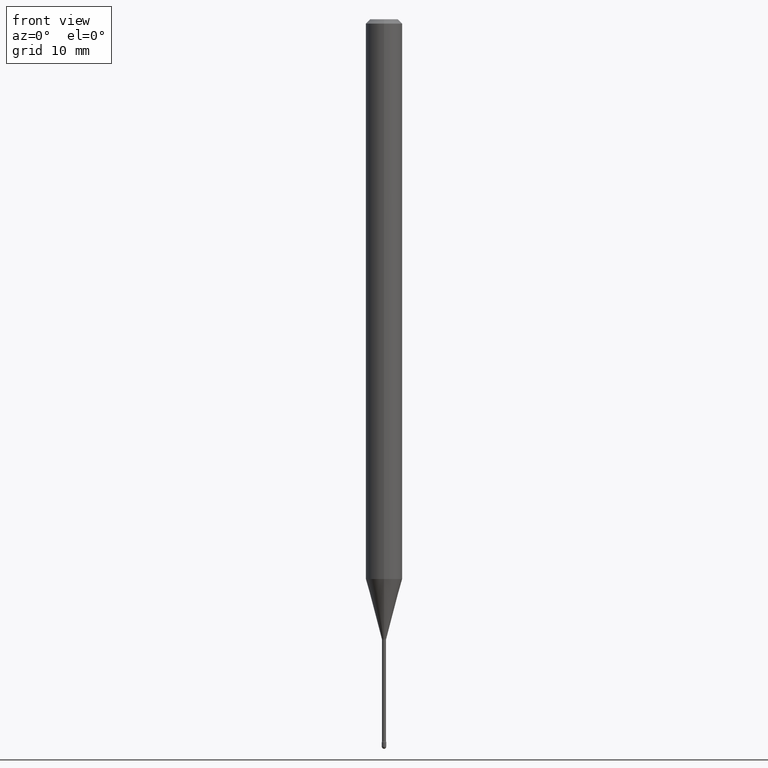
[diagram: clean part render]
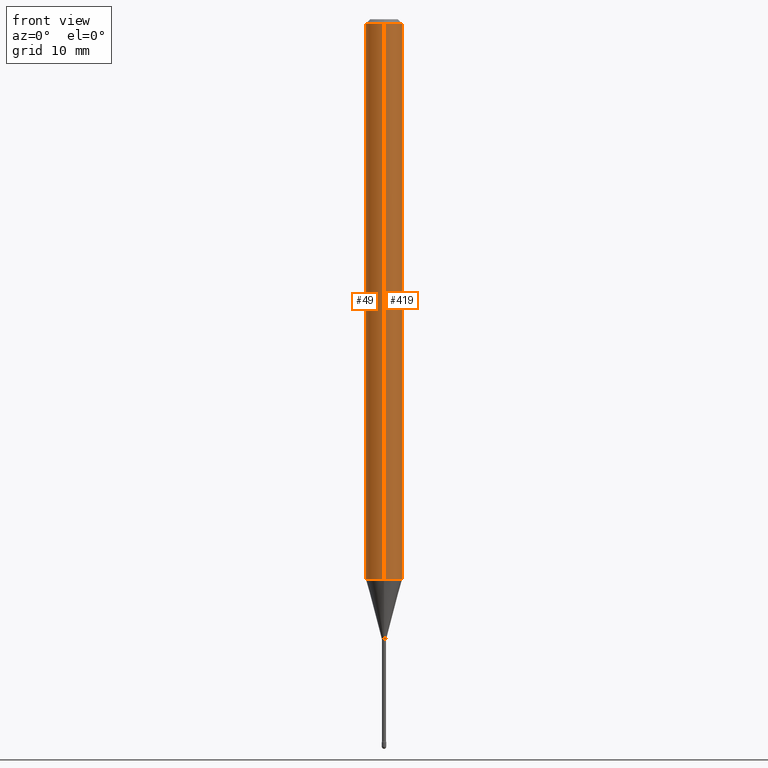
[diagram: same view with one multi-face feature highlighted, each face labeled with its STEP entity id]
A machine part, front view. The highlighted faces form ONE feature: a constant-radius fillet chain: 2 tangent blend faces with common blend radius 1.5875 mm. The faces share edges in the B-rep.
Their STEP definitions:
[1] entity #49 (Cylinder):
#6 = DIRECTION ( 'NONE',  ( -2.445435438683695197E-29, 3.491529123004369972E-15, 1.000000000000000000 ) ) ;
#25 = DIRECTION ( 'NONE',  ( -2.445435438683695197E-29, 3.491529123004369972E-15, 1.000000000000000000 ) ) ;
#26 = VERTEX_POINT ( 'NONE', #444 ) ;
#49 = ADVANCED_FACE ( 'NONE', ( #309 ), #258, .T. ) ;
#50 = CARTESIAN_POINT ( 'NONE',  ( -4.364351673553912750E-16, -0.06250000000000005551, -0.01499999999999986587 ) ) ;
#71 = EDGE_CURVE ( 'NONE', #26, #110, #418, .T. ) ;
#94 = EDGE_CURVE ( 'NONE', #166, #110, #321, .T. ) ;
#105 = ORIENTED_EDGE ( 'NONE', *, *, #94, .F. ) ;
#110 = VERTEX_POINT ( 'NONE', #50 ) ;
#112 = VERTEX_POINT ( 'NONE', #445 ) ;
#114 = CIRCLE ( 'NONE', #227, 0.06250000000000000000 ) ;
#135 = CARTESIAN_POINT ( 'NONE',  ( -1.169113584055446105E-44, 1.669184350826100908E-30, 4.780733988912460139E-16 ) ) ;
#137 = CARTESIAN_POINT ( 'NONE',  ( 4.440892098501097506E-16, 0.06249999999999995143, -0.01500000000000030129 ) ) ;
#148 = EDGE_LOOP ( 'NONE', ( #275, #186, #449, #105 ) ) ;
#166 = VERTEX_POINT ( 'NONE', #137 ) ;
#186 = ORIENTED_EDGE ( 'NONE', *, *, #235, .T. ) ;
#222 = DIRECTION ( 'NONE',  ( -2.445435438683695197E-29, 3.491529123004369972E-15, 1.000000000000000000 ) ) ;
#227 = AXIS2_PLACEMENT_3D ( 'NONE', #236, #244, #286 ) ;
#231 = AXIS2_PLACEMENT_3D ( 'NONE', #135, #222, #397 ) ;
#235 = EDGE_CURVE ( 'NONE', #112, #26, #114, .T. ) ;
#236 = CARTESIAN_POINT ( 'NONE',  ( 4.690486475307307994E-29, -6.696954607973137123E-15, -1.918057782720306248 ) ) ;
#244 = DIRECTION ( 'NONE',  ( -2.445435438683695197E-29, 3.491529123004369972E-15, 1.000000000000000000 ) ) ;
#252 = VECTOR ( 'NONE', #377, 39.37007874015748143 ) ;
#258 = CYLINDRICAL_SURFACE ( 'NONE', #231, 0.06250000000000000000 ) ;
#265 = EDGE_CURVE ( 'NONE', #112, #166, #413, .T. ) ;
#275 = ORIENTED_EDGE ( 'NONE', *, *, #265, .F. ) ;
#286 = DIRECTION ( 'NONE',  ( -6.982962677686265922E-15, -1.000000000000000000, 4.370956789862821150E-15 ) ) ;
#309 = FACE_OUTER_BOUND ( 'NONE', #148, .T. ) ;
#321 = CIRCLE ( 'NONE', #542, 0.06250000000000000000 ) ;
#362 = CARTESIAN_POINT ( 'NONE',  ( 3.668153158025562537E-31, -5.237293684506583702E-17, -0.01500000000000008271 ) ) ;
#377 = DIRECTION ( 'NONE',  ( -2.445435438683695197E-29, 3.491529123004369972E-15, 1.000000000000000000 ) ) ;
#397 = DIRECTION ( 'NONE',  ( -6.982962677686265922E-15, -1.000000000000000000, 3.491529123004369183E-15 ) ) ;
#413 = LINE ( 'NONE', #421, #252 ) ;
#418 = LINE ( 'NONE', #485, #442 ) ;
#421 = CARTESIAN_POINT ( 'NONE',  ( 4.440892098500625669E-16, 0.06250000000000000000, 2.598528287034729400E-16 ) ) ;
#442 = VECTOR ( 'NONE', #6, 39.37007874015748143 ) ;
#444 = CARTESIAN_POINT ( 'NONE',  ( -4.364351673553448308E-16, -0.06250000000000670297, -1.918057782720306026 ) ) ;
#445 = CARTESIAN_POINT ( 'NONE',  ( 4.440892098501093562E-16, 0.06249999999999330397, -1.918057782720306470 ) ) ;
#449 = ORIENTED_EDGE ( 'NONE', *, *, #71, .T. ) ;
#481 = DIRECTION ( 'NONE',  ( -6.982962677686265922E-15, -1.000000000000000000, 3.483106191921935554E-15 ) ) ;
#485 = CARTESIAN_POINT ( 'NONE',  ( -4.364351673553916201E-16, -0.06250000000000000000, 6.962939690790190879E-16 ) ) ;
#542 = AXIS2_PLACEMENT_3D ( 'NONE', #362, #25, #481 ) ;
[2] entity #419 (Cylinder):
#6 = DIRECTION ( 'NONE',  ( -2.445435438683695197E-29, 3.491529123004369972E-15, 1.000000000000000000 ) ) ;
#24 = DIRECTION ( 'NONE',  ( -2.445435438683695197E-29, 3.491529123004369972E-15, 1.000000000000000000 ) ) ;
#26 = VERTEX_POINT ( 'NONE', #444 ) ;
#39 = CARTESIAN_POINT ( 'NONE',  ( 3.668153158025562537E-31, -5.237293684506583702E-17, -0.01500000000000008271 ) ) ;
#50 = CARTESIAN_POINT ( 'NONE',  ( -4.364351673553912750E-16, -0.06250000000000005551, -0.01499999999999986587 ) ) ;
#71 = EDGE_CURVE ( 'NONE', #26, #110, #418, .T. ) ;
#80 = EDGE_CURVE ( 'NONE', #110, #166, #287, .T. ) ;
#110 = VERTEX_POINT ( 'NONE', #50 ) ;
#112 = VERTEX_POINT ( 'NONE', #445 ) ;
#113 = CARTESIAN_POINT ( 'NONE',  ( -1.169113584055446105E-44, 1.669184350826100908E-30, 4.780733988912460139E-16 ) ) ;
#137 = CARTESIAN_POINT ( 'NONE',  ( 4.440892098501097506E-16, 0.06249999999999995143, -0.01500000000000030129 ) ) ;
#143 = AXIS2_PLACEMENT_3D ( 'NONE', #251, #420, #523 ) ;
#166 = VERTEX_POINT ( 'NONE', #137 ) ;
#190 = DIRECTION ( 'NONE',  ( -6.982962677686265922E-15, -1.000000000000000000, 3.491529123004369183E-15 ) ) ;
#192 = CYLINDRICAL_SURFACE ( 'NONE', #392, 0.06250000000000000000 ) ;
#200 = DIRECTION ( 'NONE',  ( -2.445435438683695197E-29, 3.491529123004369972E-15, 1.000000000000000000 ) ) ;
#203 = ORIENTED_EDGE ( 'NONE', *, *, #71, .F. ) ;
#224 = EDGE_CURVE ( 'NONE', #26, #112, #345, .T. ) ;
#251 = CARTESIAN_POINT ( 'NONE',  ( 4.690486475307307994E-29, -6.696954607973137123E-15, -1.918057782720306248 ) ) ;
#252 = VECTOR ( 'NONE', #377, 39.37007874015748143 ) ;
#265 = EDGE_CURVE ( 'NONE', #112, #166, #413, .T. ) ;
#280 = ORIENTED_EDGE ( 'NONE', *, *, #265, .T. ) ;
#287 = CIRCLE ( 'NONE', #473, 0.06250000000000000000 ) ;
#291 = FACE_OUTER_BOUND ( 'NONE', #495, .T. ) ;
#341 = DIRECTION ( 'NONE',  ( -6.982962677686265922E-15, -1.000000000000000000, 3.483106191921935554E-15 ) ) ;
#345 = CIRCLE ( 'NONE', #143, 0.06250000000000000000 ) ;
#377 = DIRECTION ( 'NONE',  ( -2.445435438683695197E-29, 3.491529123004369972E-15, 1.000000000000000000 ) ) ;
#392 = AXIS2_PLACEMENT_3D ( 'NONE', #113, #24, #190 ) ;
#413 = LINE ( 'NONE', #421, #252 ) ;
#418 = LINE ( 'NONE', #485, #442 ) ;
#419 = ADVANCED_FACE ( 'NONE', ( #291 ), #192, .T. ) ;
#420 = DIRECTION ( 'NONE',  ( -2.445435438683695197E-29, 3.491529123004369972E-15, 1.000000000000000000 ) ) ;
#421 = CARTESIAN_POINT ( 'NONE',  ( 4.440892098500625669E-16, 0.06250000000000000000, 2.598528287034729400E-16 ) ) ;
#442 = VECTOR ( 'NONE', #6, 39.37007874015748143 ) ;
#444 = CARTESIAN_POINT ( 'NONE',  ( -4.364351673553448308E-16, -0.06250000000000670297, -1.918057782720306026 ) ) ;
#445 = CARTESIAN_POINT ( 'NONE',  ( 4.440892098501093562E-16, 0.06249999999999330397, -1.918057782720306470 ) ) ;
#473 = AXIS2_PLACEMENT_3D ( 'NONE', #39, #200, #341 ) ;
#485 = CARTESIAN_POINT ( 'NONE',  ( -4.364351673553916201E-16, -0.06250000000000000000, 6.962939690790190879E-16 ) ) ;
#495 = EDGE_LOOP ( 'NONE', ( #524, #280, #532, #203 ) ) ;
#523 = DIRECTION ( 'NONE',  ( -6.982962677686265922E-15, -1.000000000000000000, 4.370956789862821150E-15 ) ) ;
#524 = ORIENTED_EDGE ( 'NONE', *, *, #224, .T. ) ;
#532 = ORIENTED_EDGE ( 'NONE', *, *, #80, .F. ) ;